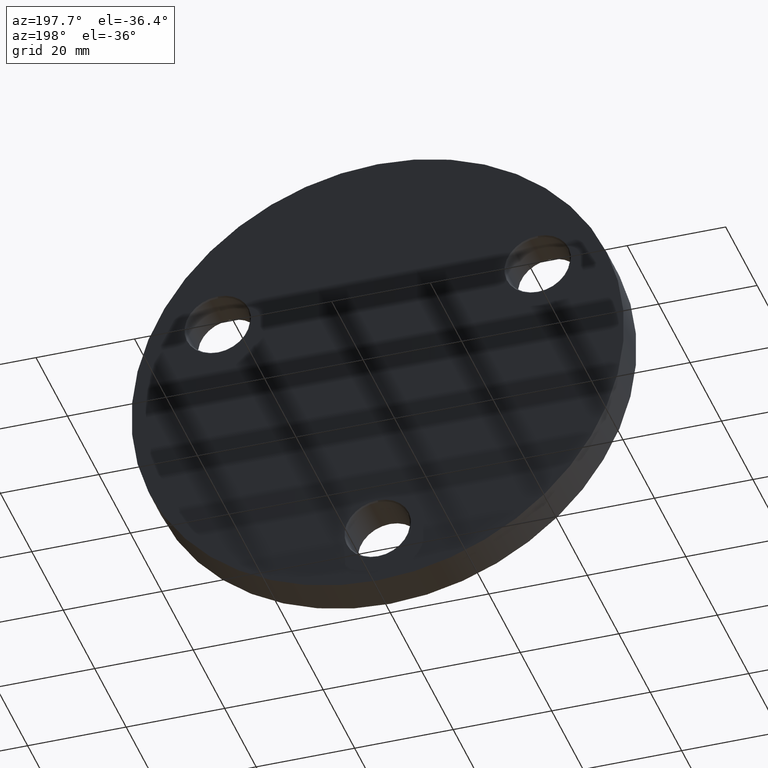
[diagram: clean part render]
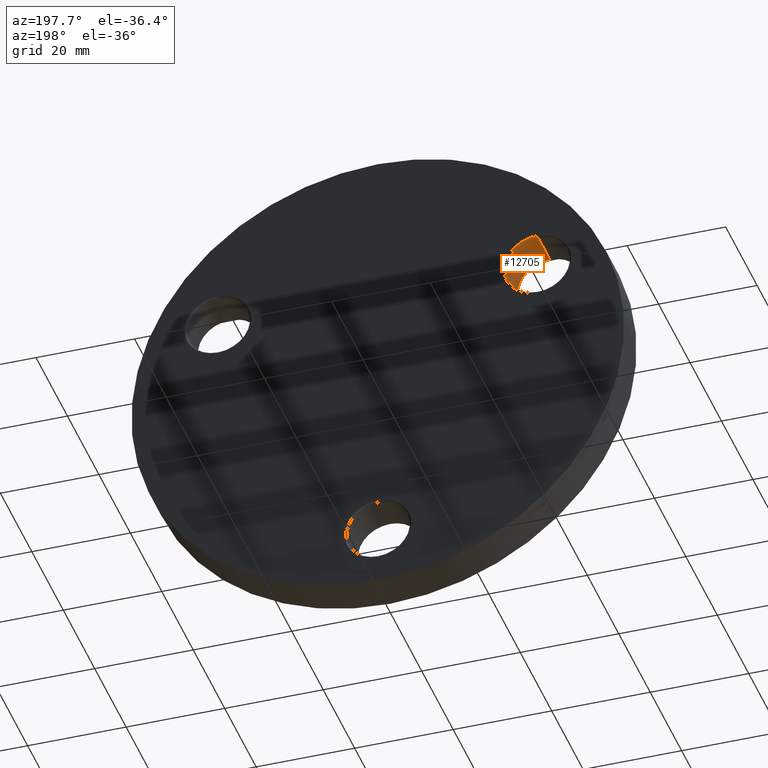
[diagram: same view with one face highlighted and labeled with its STEP entity id]
A machine part, auxiliary view. The second image highlights one B-rep face of the part: STEP entity #12705.
In plain terms, the highlighted cylindrical surface (edge-blend (fillet) strip) has radius 6.5 mm, axis along (-0, -1, -0).
Its self-contained STEP definition (entity closure, byte-faithful):
#273 = LINE ( 'NONE', #985, #11805 ) ;
#457 = EDGE_CURVE ( 'NONE', #12799, #9451, #4047, .T. ) ;
#606 = ORIENTED_EDGE ( 'NONE', *, *, #457, .T. ) ;
#924 = DIRECTION ( 'NONE',  ( 0.000000000000000000, 0.000000000000000000, -1.000000000000000000 ) ) ;
#985 = CARTESIAN_POINT ( 'NONE',  ( -32.47595264191643594, 8.000000000000000000, 12.25000000000001599 ) ) ;
#1276 = EDGE_CURVE ( 'NONE', #12799, #6099, #8953, .T. ) ;
#1458 = DIRECTION ( 'NONE',  ( 0.000000000000000000, 0.000000000000000000, 1.000000000000000000 ) ) ;
#1696 = AXIS2_PLACEMENT_3D ( 'NONE', #2377, #10210, #3522 ) ;
#2377 = CARTESIAN_POINT ( 'NONE',  ( -32.47595264191643594, 7.749999999999982236, 18.75000000000001776 ) ) ;
#2960 = EDGE_CURVE ( 'NONE', #9186, #6099, #7526, .T. ) ;
#3522 = DIRECTION ( 'NONE',  ( 0.000000000000000000, 0.000000000000000000, 1.000000000000000000 ) ) ;
#4047 = CIRCLE ( 'NONE', #1696, 6.499999999999999112 ) ;
#4199 = DIRECTION ( 'NONE',  ( -0.000000000000000000, -1.000000000000000000, -0.000000000000000000 ) ) ;
#4655 = CARTESIAN_POINT ( 'NONE',  ( -32.47595264191643594, 7.749999999999982236, 12.25000000000001599 ) ) ;
#5514 = CARTESIAN_POINT ( 'NONE',  ( -32.47595264191643594, 8.000000000000000000, 25.25000000000001421 ) ) ;
#6099 = VERTEX_POINT ( 'NONE', #9166 ) ;
#7119 = EDGE_LOOP ( 'NONE', ( #9804, #606, #13322, #7266 ) ) ;
#7247 = CARTESIAN_POINT ( 'NONE',  ( -32.47595264191643594, 0.2499999999999941436, 12.25000000000001599 ) ) ;
#7266 = ORIENTED_EDGE ( 'NONE', *, *, #2960, .T. ) ;
#7526 = CIRCLE ( 'NONE', #9789, 6.499999999999999112 ) ;
#8566 = CARTESIAN_POINT ( 'NONE',  ( -32.47595264191643594, 8.000000000000000000, 18.75000000000001776 ) ) ;
#8826 = DIRECTION ( 'NONE',  ( -0.000000000000000000, -1.000000000000000000, -0.000000000000000000 ) ) ;
#8953 = LINE ( 'NONE', #5514, #11916 ) ;
#9166 = CARTESIAN_POINT ( 'NONE',  ( -32.47595264191643594, 0.2499999999999941436, 25.25000000000001421 ) ) ;
#9186 = VERTEX_POINT ( 'NONE', #7247 ) ;
#9451 = VERTEX_POINT ( 'NONE', #4655 ) ;
#9789 = AXIS2_PLACEMENT_3D ( 'NONE', #11516, #12619, #1458 ) ;
#9804 = ORIENTED_EDGE ( 'NONE', *, *, #1276, .F. ) ;
#10210 = DIRECTION ( 'NONE',  ( 0.000000000000000000, 1.000000000000000000, 0.000000000000000000 ) ) ;
#10400 = CYLINDRICAL_SURFACE ( 'NONE', #11780, 6.500000000000000888 ) ;
#11278 = FACE_OUTER_BOUND ( 'NONE', #7119, .T. ) ;
#11516 = CARTESIAN_POINT ( 'NONE',  ( -32.47595264191643594, 0.2499999999999941436, 18.75000000000001776 ) ) ;
#11517 = EDGE_CURVE ( 'NONE', #9451, #9186, #273, .T. ) ;
#11780 = AXIS2_PLACEMENT_3D ( 'NONE', #8566, #4199, #924 ) ;
#11805 = VECTOR ( 'NONE', #8826, 1000.000000000000000 ) ;
#11916 = VECTOR ( 'NONE', #14513, 1000.000000000000000 ) ;
#12619 = DIRECTION ( 'NONE',  ( -0.000000000000000000, -1.000000000000000000, -0.000000000000000000 ) ) ;
#12705 = ADVANCED_FACE ( 'NONE', ( #11278 ), #10400, .F. ) ;
#12799 = VERTEX_POINT ( 'NONE', #13921 ) ;
#13322 = ORIENTED_EDGE ( 'NONE', *, *, #11517, .T. ) ;
#13921 = CARTESIAN_POINT ( 'NONE',  ( -32.47595264191643594, 7.749999999999982236, 25.25000000000001421 ) ) ;
#14513 = DIRECTION ( 'NONE',  ( -0.000000000000000000, -1.000000000000000000, -0.000000000000000000 ) ) ;